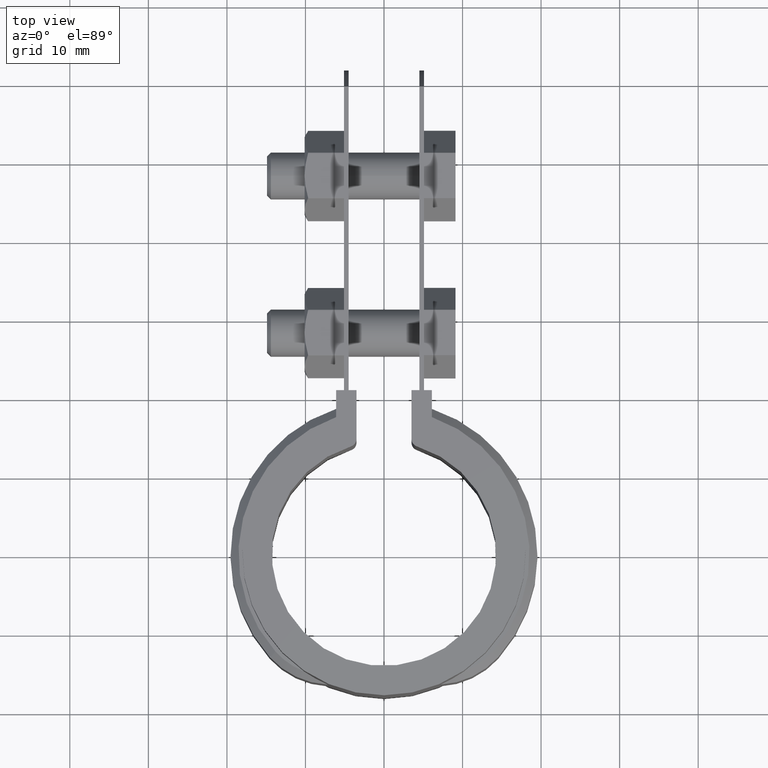
[diagram: clean part render]
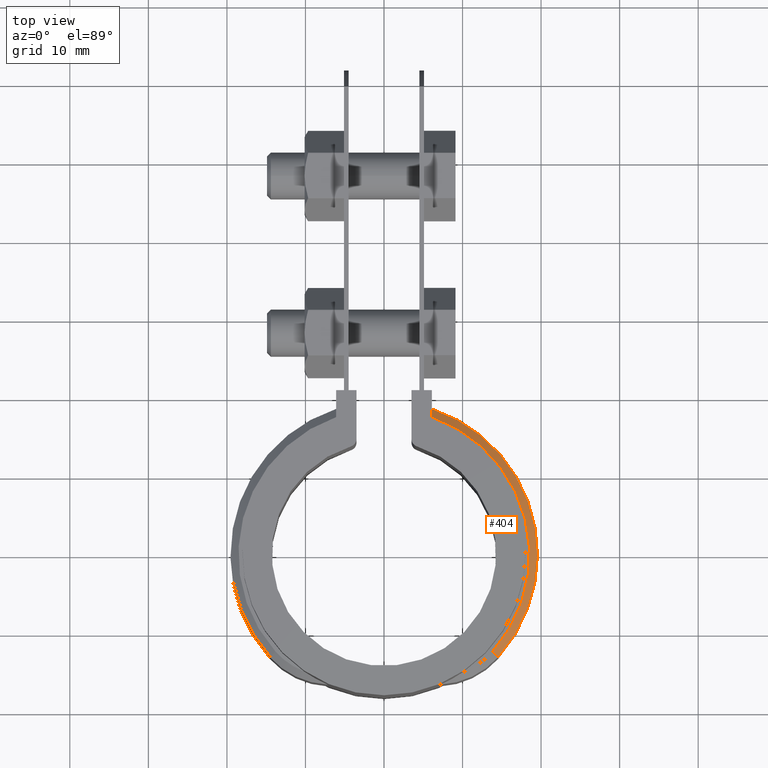
[diagram: same view with one face highlighted and labeled with its STEP entity id]
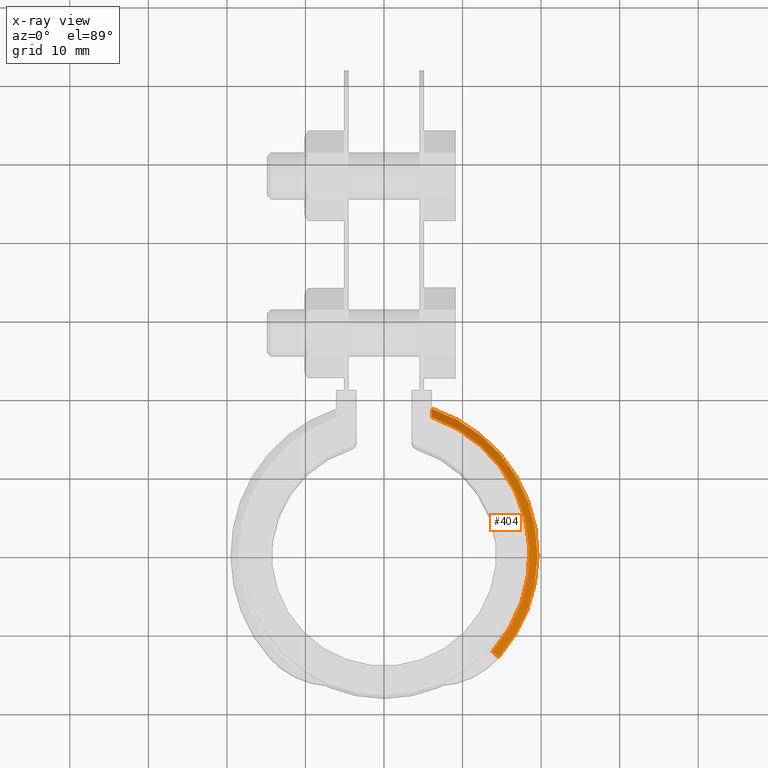
[diagram: x-ray of the same camera — body ghosted, the highlighted face saturated]
A machine part, top view. The second image highlights one B-rep face of the part: STEP entity #404.
The next image is the same camera in x-ray: the body ghosted, the highlighted face saturated — about 0% of this face is hidden behind the body in this view.
In plain terms, the highlighted conical surface has half-angle 45 deg.
Its self-contained STEP definition (entity closure, byte-faithful):
#404 = ADVANCED_FACE( '', ( #693 ), #694, .T. );
#693 = FACE_OUTER_BOUND( '', #1535, .T. );
#694 = CONICAL_SURFACE( '', #1536, 19.5350000000000, 0.785398163397447 );
#1535 = EDGE_LOOP( '', ( #3601, #3602, #3603, #3604 ) );
#1536 = AXIS2_PLACEMENT_3D( '', #3605, #3606, #3607 );
#3601 = ORIENTED_EDGE( '', *, *, #4611, .F. );
#3602 = ORIENTED_EDGE( '', *, *, #4636, .F. );
#3603 = ORIENTED_EDGE( '', *, *, #4630, .F. );
#3604 = ORIENTED_EDGE( '', *, *, #4637, .F. );
#3605 = CARTESIAN_POINT( '', ( 8.67361737988404E-016, 0.000000000000000, -6.00000000000000 ) );
#3606 = DIRECTION( '', ( 0.000000000000000, 0.000000000000000, -1.00000000000000 ) );
#3607 = DIRECTION( '', ( -1.00000000000000, 0.000000000000000, 0.000000000000000 ) );
#4611 = EDGE_CURVE( '', #5313, #5315, #5316, .T. );
#4630 = EDGE_CURVE( '', #5348, #5349, #5350, .T. );
#4636 = EDGE_CURVE( '', #5349, #5313, #5358, .T. );
#4637 = EDGE_CURVE( '', #5315, #5348, #5359, .F. );
#5313 = VERTEX_POINT( '', #7617 );
#5315 = VERTEX_POINT( '', #7620 );
#5316 = B_SPLINE_CURVE_WITH_KNOTS( '', 3, ( #7621, #7622, #7623, #7624 ), .UNSPECIFIED., .F., .F., ( 4, 4 ), ( 0.000000000000000, 0.00145414847532090 ), .UNSPECIFIED. );
#5348 = VERTEX_POINT( '', #7678 );
#5349 = VERTEX_POINT( '', #7679 );
#5350 = LINE( '', #7680, #7681 );
#5358 = CIRCLE( '', #7690, 18.5350000000000 );
#5359 = CIRCLE( '', #7691, 19.5350000000000 );
#7617 = CARTESIAN_POINT( '', ( 6.09999999999998, 17.5024633980477, -5.00000000000000 ) );
#7620 = CARTESIAN_POINT( '', ( 6.09999999999998, 18.5581848519730, -6.00000000000000 ) );
#7621 = CARTESIAN_POINT( '', ( 6.09999999999998, 17.5024633980477, -5.00000000000000 ) );
#7622 = CARTESIAN_POINT( '', ( 6.09999999999998, 17.8548851318032, -5.33278923634920 ) );
#7623 = CARTESIAN_POINT( '', ( 6.09999999999998, 18.2067653264390, -5.66615262270526 ) );
#7624 = CARTESIAN_POINT( '', ( 6.09999999999998, 18.5581848519730, -6.00000000000000 ) );
#7678 = CARTESIAN_POINT( '', ( 14.5540076052262, -13.0306211527700, -6.00000000000000 ) );
#7679 = CARTESIAN_POINT( '', ( 13.8089854600905, -12.3635814213766, -5.00000000000000 ) );
#7680 = CARTESIAN_POINT( '', ( 14.5540076052262, -13.0306211527700, -6.00000000000000 ) );
#7681 = VECTOR( '', #8524, 1000.00000000000 );
#7690 = AXIS2_PLACEMENT_3D( '', #8538, #8539, #8540 );
#7691 = AXIS2_PLACEMENT_3D( '', #8541, #8542, #8543 );
#8524 = DIRECTION( '', ( -0.526810210959614, 0.471668317389122, 0.707106781186548 ) );
#8538 = CARTESIAN_POINT( '', ( 8.67361737988404E-016, 0.000000000000000, -5.00000000000000 ) );
#8539 = DIRECTION( '', ( 0.000000000000000, 0.000000000000000, 1.00000000000000 ) );
#8540 = DIRECTION( '', ( 1.00000000000000, 0.000000000000000, 0.000000000000000 ) );
#8541 = CARTESIAN_POINT( '', ( 8.67361737988404E-016, 0.000000000000000, -6.00000000000000 ) );
#8542 = DIRECTION( '', ( 0.000000000000000, 0.000000000000000, 1.00000000000000 ) );
#8543 = DIRECTION( '', ( 1.00000000000000, 0.000000000000000, 0.000000000000000 ) );